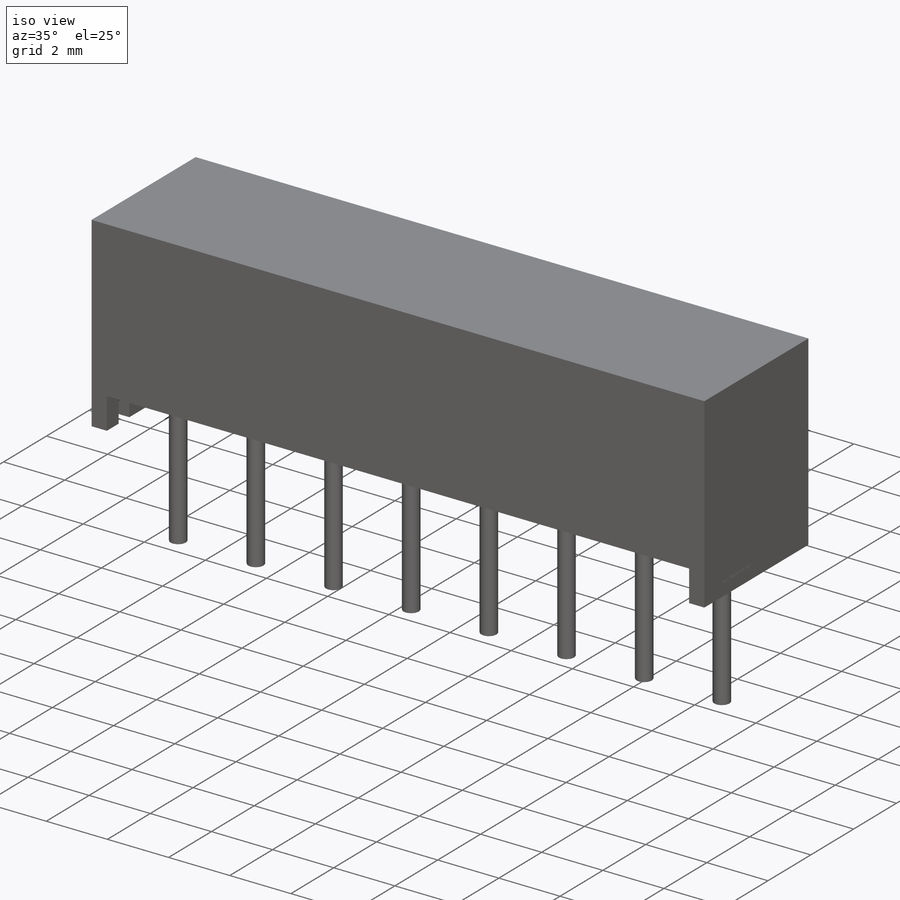
[diagram: iso view]
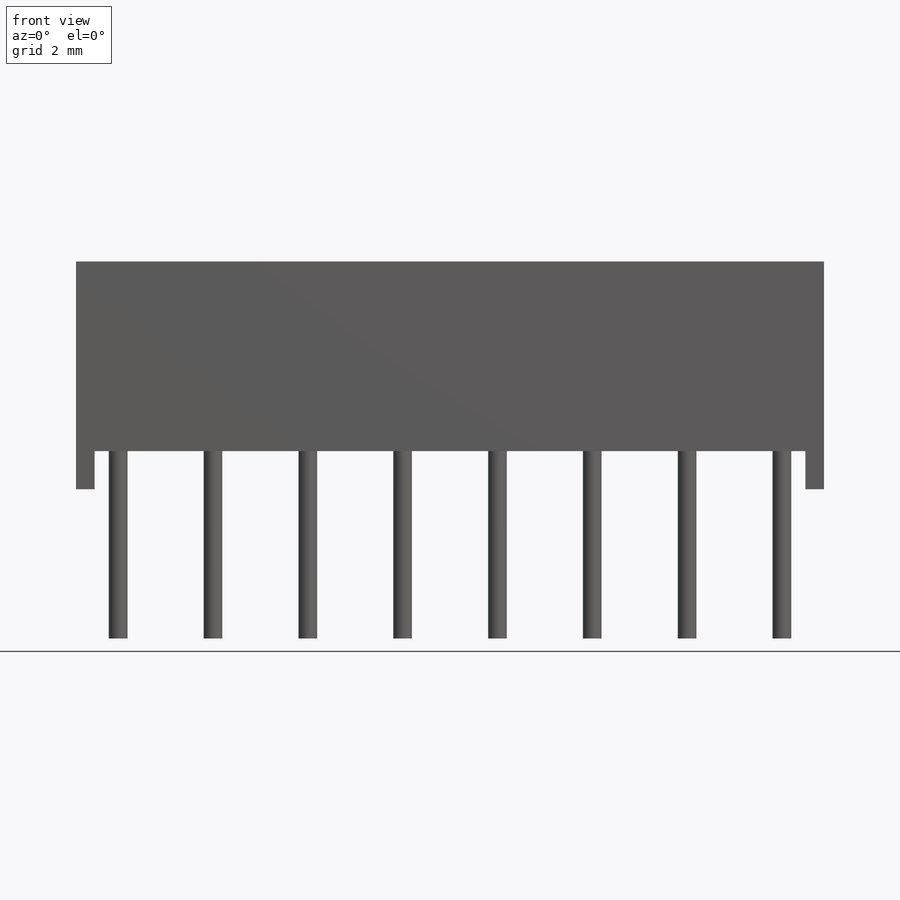
[diagram: front view]
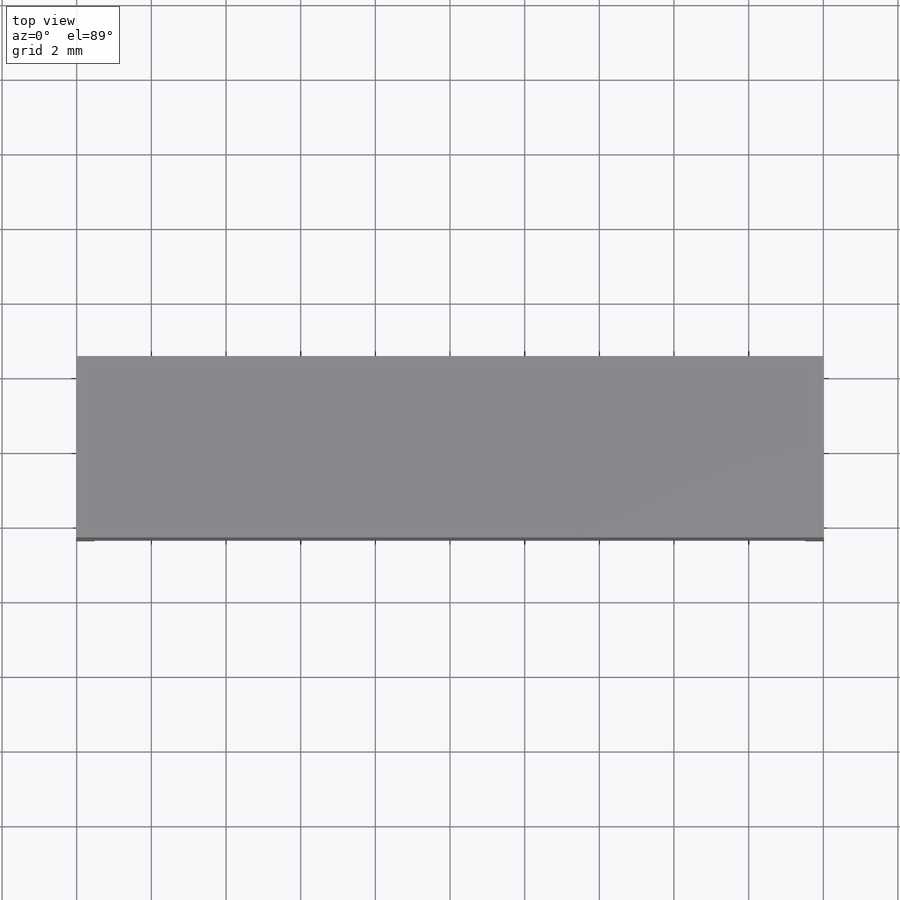
[diagram: top view]
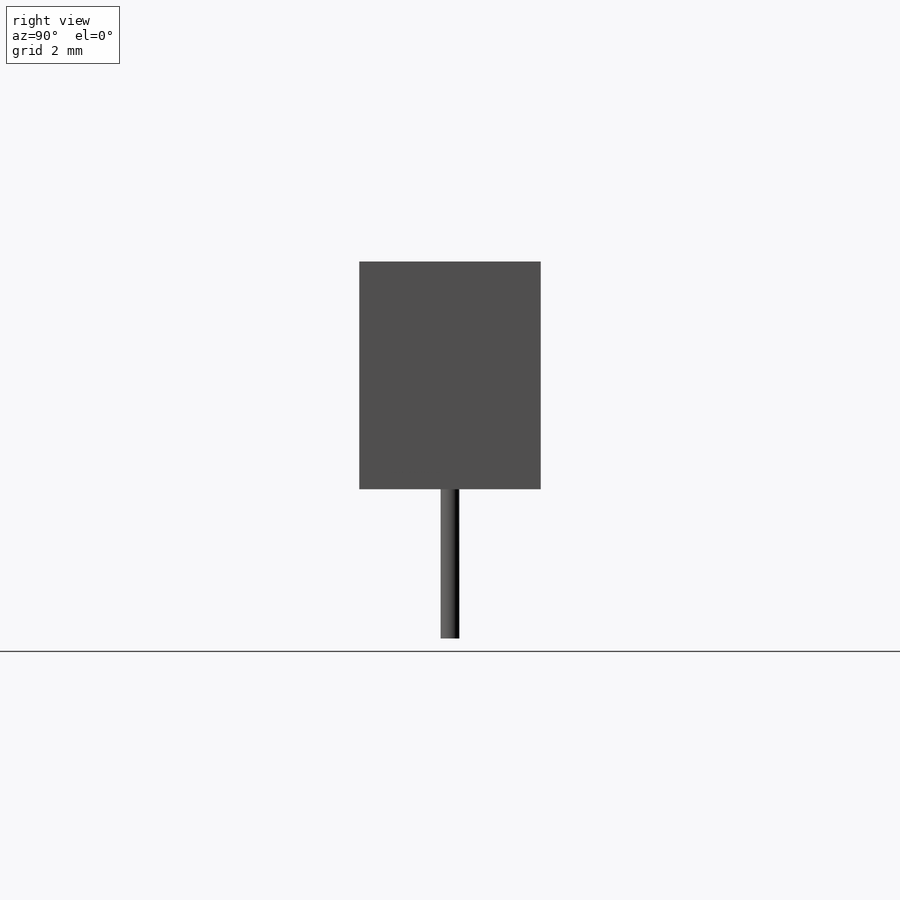
[diagram: right view]
SOLIDWORKS PART (.sldprt)
format: sldprt  version: not decoded by parser v0  size: 754,176 bytes
history: native  units: mm
features: sketch x8, extrude x4, cut_extrude x4, material x1 (+11 scaffold rows collapsed)
feature tree (28):
  scaffold x11  (default folders/planes/origin — collapsed)
  material  "Material <not specified>"
  sketch  "Sketch1"  dims[c1.D1=4.86mm c1.D2=6.1mm c1.D3=1.02mm c1.D4=1.0mm c1.D5=1.0mm c2.D4=1.0mm c2.D6=0.8mm c3.D6=105.0deg c3.D7=0.8mm c3.D5=1.0mm c4.D7=0.8mm c5.D7=105.0deg]
  extrude  "Extrude1"  Depth=20.04mm
  sketch  "Sketch2"  dims[c1.D1=2.0mm c1.D2=2.0mm c2.D1=2.54mm c2.D3=2.54mm c2.D4=2.54mm c2.D5=2.54mm c2.D6=2.54mm c2.D7=2.54mm c2.D8=2.54mm c2.D9=2.54mm c2.D10=2.54mm c2.D11=2.54mm c3.D1=0.5mm c3.D2=0.5mm c3.D3=3.86mm c4.D1=3.81mm c4.D2=19.05mm]
  sketch  "Sketch3"  dims[c1.D1=1.02mm c1.D2=1.0mm c1.D3=1.0mm c2.D2=0.5mm c2.D3=0.5mm c2.D4=0.8mm c3.D4=105.0deg c3.D5=0.8mm c4.D5=105.0deg]
  cut_extrude  "Cut-Extrude1"  [1 undecoded]
  cut_extrude  "Cut-Extrude2"  [1 undecoded]
  sketch  "Sketch4"  dims[c1.D9=0.5mm c1.D11=0.5mm c1.D1=2.54mm c1.D2=2.54mm c1.D3=2.54mm c1.D4=0.5mm c1.D5=0.5mm c1.D6=2.54mm c1.D7=2.54mm c1.D8=7.62mm c2.D1=2.54mm c2.D2=2.54mm c2.D3=2.54mm c2.D4=2.54mm c2.D5=2.54mm c2.D6=5.08mm c2.D7=0.2mm c2.D8=0.2mm c3.D1=2.54mm c3.D2=2.54mm c3.D3=2.54mm c3.D4=2.54mm c3.D5=2.54mm c3.D6=2.54mm c3.D10=2.54mm]
  extrude  "Extrude2"  [1 undecoded]
  extrude  "Extrude3"  [1 undecoded]
  sketch  "Sketch4<3>"  dims[D1=4.0mm]
  extrude  "Extrude4"  [1 undecoded]
  sketch  "Sketch2<3>"
  sketch  "Sketch5"  dims[D1=1.02mm D2=0.5mm D3=0.55mm]
  cut_extrude  "Cut-Extrude3"  [1 undecoded]
  sketch  "Sketch6"  dims[D1=~2.772312mm]
  cut_extrude  "Cut-Extrude4"  Depth=0.01mm
decode coverage: 9 of 16 modeling features carry decoded parameters
note: ~ marks probable driven/reference dimensions
note: 6 parameter values undecoded
summary: no parameter record found for 6 features
note: suppression state not decoded; provenance and decode notes live in map.json
